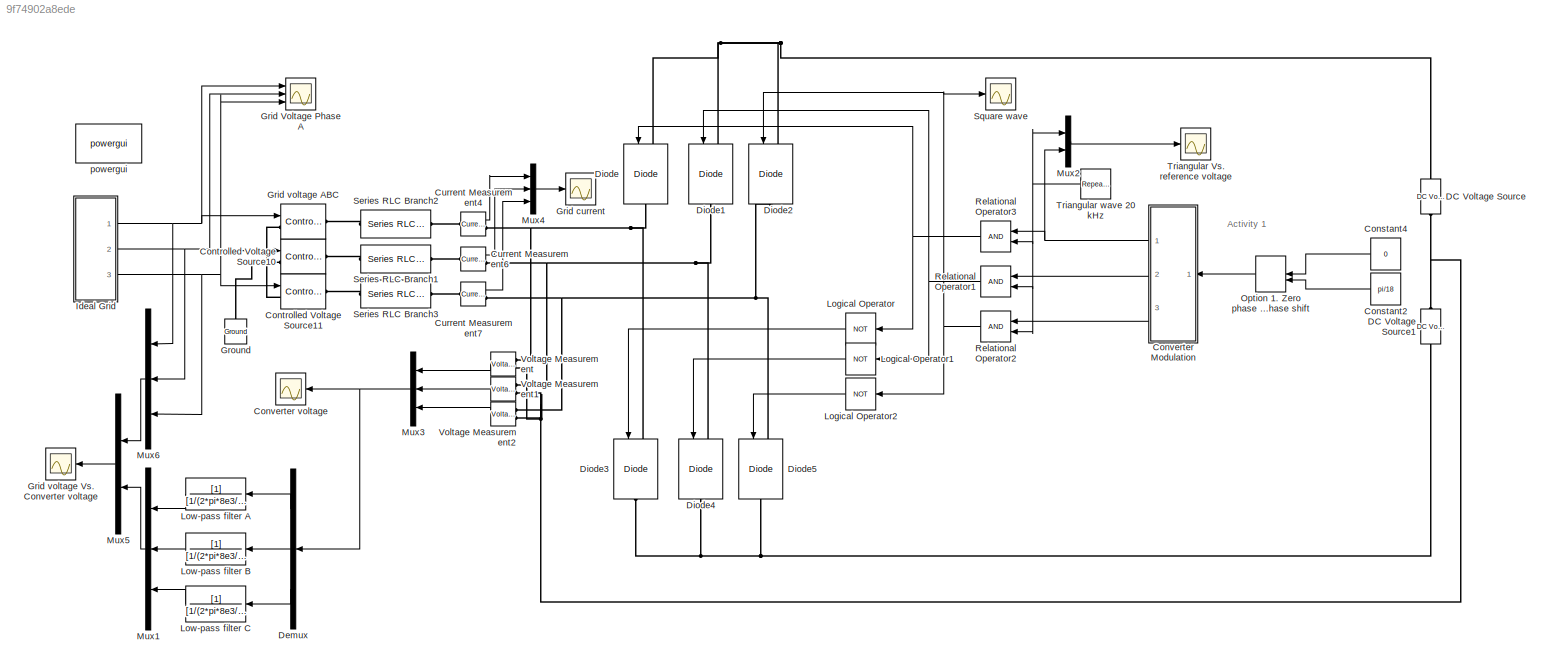
MODEL slx_9f74902a8ede
KIND model
CONFIG AbsTol = auto
CONFIG EnableMultiTasking = on
CONFIG FixedStep = auto
CONFIG InitFcn = L=5e-3\nR=0.1\ntau=10e-3\nf_grid=50\nVpeak_d1=400*sqrt(2)/sqrt(3)\n
CONFIG MaxStep = 1e-6
CONFIG MinStep = auto
CONFIG RelTol = 1e-5
CONFIG SampleTimeConstraint = Unconstrained
CONFIG SolverName = ode23s
CONFIG StartTime = 0.0
CONFIG StopTime = 20
BLOCK [Constant] Constant2
  NameLocation = top
  Value = pi/18
BLOCK [Constant] Constant4
  NameLocation = top
  Value = 0
BLOCK [Reference] Controlled Voltage Source10  REF=powerlib/Electrical
Sources/Controlled Voltage Source
  Ports = [1, 0, 0, 0, 0, 1, 1]
  SourceBlock = powerlib/Electrical\nSources/Controlled Voltage Source
  SourceProductBaseCode = PS
  SourceType = Controlled Voltage Source
BLOCK [Reference] Controlled Voltage Source11  REF=powerlib/Electrical
Sources/Controlled Voltage Source
  Ports = [1, 0, 0, 0, 0, 1, 1]
  SourceBlock = powerlib/Electrical\nSources/Controlled Voltage Source
  SourceProductBaseCode = PS
  SourceType = Controlled Voltage Source
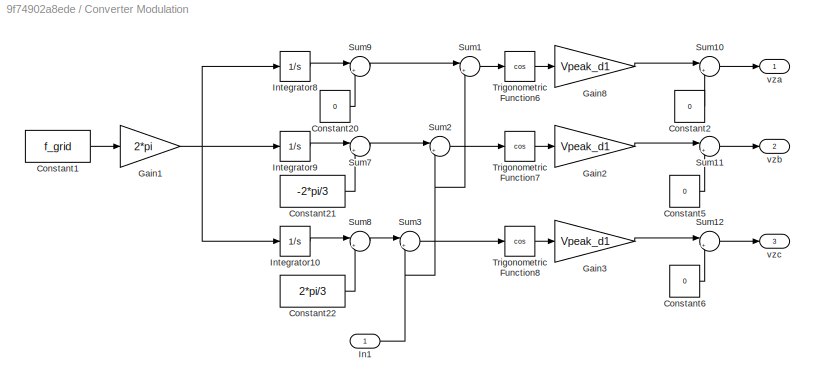
BLOCK [SubSystem] Converter Modulation
  Ports = [1, 3]
  RequestExecContextInheritance = off
BLOCK [Constant] Converter Modulation/Constant1
  Value = f_grid
BLOCK [Constant] Converter Modulation/Constant2
  Value = 0
BLOCK [Constant] Converter Modulation/Constant20
  Value = 0
BLOCK [Constant] Converter Modulation/Constant21
  Value = -2*pi/3
BLOCK [Constant] Converter Modulation/Constant22
  Value = 2*pi/3
BLOCK [Constant] Converter Modulation/Constant5
  Value = 0
BLOCK [Constant] Converter Modulation/Constant6
  Value = 0
BLOCK [Gain] Converter Modulation/Gain1
  Gain = 2*pi
BLOCK [Gain] Converter Modulation/Gain2
  Gain = Vpeak_d1
BLOCK [Gain] Converter Modulation/Gain3
  Gain = Vpeak_d1
BLOCK [Gain] Converter Modulation/Gain8
  Gain = Vpeak_d1
BLOCK [Inport] Converter Modulation/In1
BLOCK [Integrator] Converter Modulation/Integrator10
  Ports = [1, 1]
BLOCK [Integrator] Converter Modulation/Integrator8
  Ports = [1, 1]
BLOCK [Integrator] Converter Modulation/Integrator9
  Ports = [1, 1]
BLOCK [Sum] Converter Modulation/Sum1
  Inputs = |++
  Ports = [2, 1]
BLOCK [Sum] Converter Modulation/Sum10
  Inputs = |++
  Ports = [2, 1]
BLOCK [Sum] Converter Modulation/Sum11
  Inputs = |++
  Ports = [2, 1]
BLOCK [Sum] Converter Modulation/Sum12
  Inputs = |++
  Ports = [2, 1]
BLOCK [Sum] Converter Modulation/Sum2
  Inputs = |++
  Ports = [2, 1]
BLOCK [Sum] Converter Modulation/Sum3
  Inputs = |++
  Ports = [2, 1]
BLOCK [Sum] Converter Modulation/Sum7
  Inputs = |++
  Ports = [2, 1]
BLOCK [Sum] Converter Modulation/Sum8
  Inputs = |++
  Ports = [2, 1]
BLOCK [Sum] Converter Modulation/Sum9
  Inputs = |++
  Ports = [2, 1]
BLOCK [Trigonometry] Converter Modulation/Trigonometric Function6
  Operator = cos
  Ports = [1, 1]
BLOCK [Trigonometry] Converter Modulation/Trigonometric Function7
  Operator = cos
  Ports = [1, 1]
BLOCK [Trigonometry] Converter Modulation/Trigonometric Function8
  Operator = cos
  Ports = [1, 1]
BLOCK [Outport] Converter Modulation/vza
BLOCK [Outport] Converter Modulation/vzb
  Port = 2
BLOCK [Outport] Converter Modulation/vzc
  Port = 3
BLOCK [Scope] Converter voltage
  Floating = off
  NameLocation = top
  NumInputPorts = 1
  Ports = [1]
  ScopeSpecificationString = C++SS(StrPVP('Location','[5, 49, 1593, 818]'),StrPVP('Open','off'),StrPVP('ZoomMode','xonly'),MxPVP('AxesTitles',54,'struct(''axes1'',''%<SignalLabel>'')'),MxPVP('ScopeGraphics',57,'struct(''FigureColor'',''[0.501960784313725 0.501960784313725 0.501960784313725]'',''AxesColor'',''[0 0 0]'',''AxesTickColor'',''[1 1 1]'',''LineColors'',''[1 1 0;1 0 1;0 1 1;1 0 0;0 1 0;0 0 1]'',''LineStyles'',''-|-|-...<+422ch>
BLOCK [Reference] Current Measurement4  REF=powerlib/Measurements/Current Measurement
  Ports = [0, 1, 0, 0, 0, 1, 1]
  SourceBlock = powerlib/Measurements/Current Measurement
  SourceProductBaseCode = PS
  SourceType = Current Measurement
  UserDataPersistent = on
BLOCK [Reference] Current Measurement6  REF=powerlib/Measurements/Current Measurement
  Ports = [0, 1, 0, 0, 0, 1, 1]
  SourceBlock = powerlib/Measurements/Current Measurement
  SourceProductBaseCode = PS
  SourceType = Current Measurement
  UserDataPersistent = on
BLOCK [Reference] Current Measurement7  REF=powerlib/Measurements/Current Measurement
  Ports = [0, 1, 0, 0, 0, 1, 1]
  SourceBlock = powerlib/Measurements/Current Measurement
  SourceProductBaseCode = PS
  SourceType = Current Measurement
  UserDataPersistent = on
BLOCK [Reference] DC Voltage Source  REF=powerlib/Electrical
Sources/DC Voltage Source
  NameLocation = right
  Ports = [0, 0, 0, 0, 0, 1, 1]
  SourceBlock = powerlib/Electrical\nSources/DC Voltage Source
  SourceProductBaseCode = PS
  SourceType = DC Voltage Source
BLOCK [Reference] DC Voltage Source1  REF=powerlib/Electrical
Sources/DC Voltage Source
  NameLocation = right
  Ports = [0, 0, 0, 0, 0, 1, 1]
  SourceBlock = powerlib/Electrical\nSources/DC Voltage Source
  SourceProductBaseCode = PS
  SourceType = DC Voltage Source
BLOCK [Demux] Demux
  NameLocation = top
  Outputs = 3
  Ports = [1, 3]
BLOCK [Reference] Diode  REF=powerlib/Power
Electronics/IGBT//Diode
  NameLocation = left
  Ports = [1, 0, 0, 0, 0, 1, 1]
  SourceBlock = powerlib/Power\nElectronics/IGBT//Diode
  SourceProductBaseCode = PS
  SourceType = IGBT/Diode
BLOCK [Reference] Diode1  REF=powerlib/Power
Electronics/IGBT//Diode
  NameLocation = left
  Ports = [1, 0, 0, 0, 0, 1, 1]
  SourceBlock = powerlib/Power\nElectronics/IGBT//Diode
  SourceProductBaseCode = PS
  SourceType = IGBT/Diode
BLOCK [Reference] Diode2  REF=powerlib/Power
Electronics/IGBT//Diode
  NameLocation = left
  Ports = [1, 0, 0, 0, 0, 1, 1]
  SourceBlock = powerlib/Power\nElectronics/IGBT//Diode
  SourceProductBaseCode = PS
  SourceType = IGBT/Diode
BLOCK [Reference] Diode3  REF=powerlib/Power
Electronics/IGBT//Diode
  NameLocation = left
  Ports = [1, 0, 0, 0, 0, 1, 1]
  SourceBlock = powerlib/Power\nElectronics/IGBT//Diode
  SourceProductBaseCode = PS
  SourceType = IGBT/Diode
BLOCK [Reference] Diode4  REF=powerlib/Power
Electronics/IGBT//Diode
  NameLocation = left
  Ports = [1, 0, 0, 0, 0, 1, 1]
  SourceBlock = powerlib/Power\nElectronics/IGBT//Diode
  SourceProductBaseCode = PS
  SourceType = IGBT/Diode
BLOCK [Reference] Diode5  REF=powerlib/Power
Electronics/IGBT//Diode
  NameLocation = left
  Ports = [1, 0, 0, 0, 0, 1, 1]
  SourceBlock = powerlib/Power\nElectronics/IGBT//Diode
  SourceProductBaseCode = PS
  SourceType = IGBT/Diode
BLOCK [Scope] Grid Voltage Phase A
  Floating = off
  NumInputPorts = 3
  Ports = [3]
  ScopeSpecificationString = Simulink.scopes.TimeScopeBlockCfg('CurrentConfiguration', extmgr.ConfigurationSet(extmgr.Configuration('Core','General UI',true),extmgr.Configuration('Core','Source UI',true),extmgr.Configuration('Sources','WiredSimulink',true,'DataLoggingVariableName','ScopeData5','DataLoggingSaveFormat','StructureWithTime','DataLoggingDecimation','1','DataLoggingDecimateData',true),extmgr.Configuration('Visuals'...<+1844ch>
BLOCK [Scope] Grid current
  Floating = off
  NumInputPorts = 1
  Ports = [1]
  ScopeSpecificationString = Simulink.scopes.TimeScopeBlockCfg('CurrentConfiguration', extmgr.ConfigurationSet(extmgr.Configuration('Core','General UI',true),extmgr.Configuration('Core','Source UI',true),extmgr.Configuration('Sources','WiredSimulink',true,'DataLoggingVariableName','ScopeData4','DataLoggingSaveFormat','StructureWithTime','DataLoggingDecimation','1','DataLoggingDecimateData',true),extmgr.Configuration('Visuals'...<+1830ch>
BLOCK [Reference] Grid voltage ABC  REF=powerlib/Electrical
Sources/Controlled Voltage Source
  NameLocation = top
  Ports = [1, 0, 0, 0, 0, 1, 1]
  SourceBlock = powerlib/Electrical\nSources/Controlled Voltage Source
  SourceProductBaseCode = PS
  SourceType = Controlled Voltage Source
BLOCK [Scope] Grid voltage Vs. Converter voltage
  Floating = off
  NameLocation = top
  NumInputPorts = 1
  Ports = [1]
  ScopeSpecificationString = Simulink.scopes.TimeScopeBlockCfg('CurrentConfiguration', extmgr.ConfigurationSet(extmgr.Configuration('Core','General UI',true),extmgr.Configuration('Core','Source UI',true),extmgr.Configuration('Sources','WiredSimulink',true,'DataLoggingVariableName','ScopeData3','DataLoggingSaveFormat','StructureWithTime','DataLoggingDecimation','1','DataLoggingDecimateData',true),extmgr.Configuration('Visuals'...<+1904ch>
BLOCK [Reference] Ground  REF=powerlib/Elements/Ground
  NameLocation = right
  Ports = [0, 0, 0, 0, 0, 1]
  SourceBlock = powerlib/Elements/Ground
  SourceProductBaseCode = PS
  SourceType = Ground
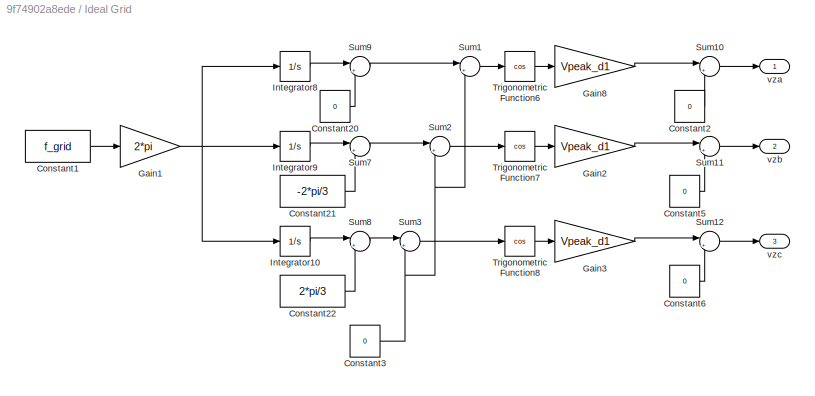
BLOCK [SubSystem] Ideal Grid
  Ports = [0, 3]
  RequestExecContextInheritance = off
BLOCK [Constant] Ideal Grid/Constant1
  Value = f_grid
BLOCK [Constant] Ideal Grid/Constant2
  Value = 0
BLOCK [Constant] Ideal Grid/Constant20
  Value = 0
BLOCK [Constant] Ideal Grid/Constant21
  Value = -2*pi/3
BLOCK [Constant] Ideal Grid/Constant22
  Value = 2*pi/3
BLOCK [Constant] Ideal Grid/Constant3
  Value = 0
BLOCK [Constant] Ideal Grid/Constant5
  Value = 0
BLOCK [Constant] Ideal Grid/Constant6
  Value = 0
BLOCK [Gain] Ideal Grid/Gain1
  Gain = 2*pi
BLOCK [Gain] Ideal Grid/Gain2
  Gain = Vpeak_d1
BLOCK [Gain] Ideal Grid/Gain3
  Gain = Vpeak_d1
BLOCK [Gain] Ideal Grid/Gain8
  Gain = Vpeak_d1
BLOCK [Integrator] Ideal Grid/Integrator10
  Ports = [1, 1]
BLOCK [Integrator] Ideal Grid/Integrator8
  Ports = [1, 1]
BLOCK [Integrator] Ideal Grid/Integrator9
  Ports = [1, 1]
BLOCK [Sum] Ideal Grid/Sum1
  Inputs = |++
  Ports = [2, 1]
BLOCK [Sum] Ideal Grid/Sum10
  Inputs = |++
  Ports = [2, 1]
BLOCK [Sum] Ideal Grid/Sum11
  Inputs = |++
  Ports = [2, 1]
BLOCK [Sum] Ideal Grid/Sum12
  Inputs = |++
  Ports = [2, 1]
BLOCK [Sum] Ideal Grid/Sum2
  Inputs = |++
  Ports = [2, 1]
BLOCK [Sum] Ideal Grid/Sum3
  Inputs = |++
  Ports = [2, 1]
BLOCK [Sum] Ideal Grid/Sum7
  Inputs = |++
  Ports = [2, 1]
BLOCK [Sum] Ideal Grid/Sum8
  Inputs = |++
  Ports = [2, 1]
BLOCK [Sum] Ideal Grid/Sum9
  Inputs = |++
  Ports = [2, 1]
BLOCK [Trigonometry] Ideal Grid/Trigonometric Function6
  Operator = cos
  Ports = [1, 1]
BLOCK [Trigonometry] Ideal Grid/Trigonometric Function7
  Operator = cos
  Ports = [1, 1]
BLOCK [Trigonometry] Ideal Grid/Trigonometric Function8
  Operator = cos
  Ports = [1, 1]
BLOCK [Outport] Ideal Grid/vza
BLOCK [Outport] Ideal Grid/vzb
  Port = 2
BLOCK [Outport] Ideal Grid/vzc
  Port = 3
BLOCK [Logic] Logical Operator
  AllPortsSameDT = off
  NameLocation = top
  Operator = NOT
  Ports = [1, 1]
BLOCK [Logic] Logical Operator1
  AllPortsSameDT = off
  NameLocation = top
  Operator = NOT
  Ports = [1, 1]
BLOCK [Logic] Logical Operator2
  AllPortsSameDT = off
  NameLocation = top
  Operator = NOT
  Ports = [1, 1]
BLOCK [TransferFcn] Low-pass filter A
  Denominator = [1/(2*pi*8e3/10) 1]
  NameLocation = top
BLOCK [TransferFcn] Low-pass filter B
  Denominator = [1/(2*pi*8e3/10) 1]
  NameLocation = top
BLOCK [TransferFcn] Low-pass filter C
  Denominator = [1/(2*pi*8e3/10) 1]
  NameLocation = top
BLOCK [Mux] Mux1
  DisplayOption = bar
  Inputs = 3
  NameLocation = top
  Ports = [3, 1]
BLOCK [Mux] Mux2
  DisplayOption = bar
  Inputs = 2
  Ports = [2, 1]
BLOCK [Mux] Mux3
  DisplayOption = bar
  Inputs = 3
  NameLocation = top
  Ports = [3, 1]
BLOCK [Mux] Mux4
  DisplayOption = bar
  Inputs = 3
  Ports = [3, 1]
BLOCK [Mux] Mux5
  DisplayOption = bar
  Inputs = 2
  NameLocation = top
  Ports = [2, 1]
BLOCK [Mux] Mux6
  DisplayOption = bar
  Inputs = 3
  NameLocation = top
  Ports = [3, 1]
BLOCK [ManualSwitch] Option 1. Zero phase shift Option 2. 20 deg. phase shift 
BLOCK [RelationalOperator] Relational Operator1
  InputSameDT = off
  NameLocation = top
  Ports = [2, 1]
BLOCK [RelationalOperator] Relational Operator2
  InputSameDT = off
  NameLocation = top
  Ports = [2, 1]
BLOCK [RelationalOperator] Relational Operator3
  InputSameDT = off
  NameLocation = top
  Ports = [2, 1]
BLOCK [Reference] Series RLC Branch1  REF=powerlib/Elements/Series RLC Branch
  Ports = [0, 0, 0, 0, 0, 1, 1]
  SourceBlock = powerlib/Elements/Series RLC Branch
  SourceProductBaseCode = PS
  SourceType = Series RLC Branch
BLOCK [Reference] Series RLC Branch2  REF=powerlib/Elements/Series RLC Branch
  Ports = [0, 0, 0, 0, 0, 1, 1]
  SourceBlock = powerlib/Elements/Series RLC Branch
  SourceProductBaseCode = PS
  SourceType = Series RLC Branch
BLOCK [Reference] Series RLC Branch3  REF=powerlib/Elements/Series RLC Branch
  Ports = [0, 0, 0, 0, 0, 1, 1]
  SourceBlock = powerlib/Elements/Series RLC Branch
  SourceProductBaseCode = PS
  SourceType = Series RLC Branch
BLOCK [Scope] Square wave
  Floating = off
  NameLocation = top
  NumInputPorts = 1
  Ports = [1]
  ScopeSpecificationString = Simulink.scopes.TimeScopeBlockCfg('CurrentConfiguration', extmgr.ConfigurationSet(extmgr.Configuration('Core','General UI',true),extmgr.Configuration('Core','Source UI',true),extmgr.Configuration('Sources','WiredSimulink',true,'DataLoggingVariableName','ScopeData1','DataLoggingSaveFormat','StructureWithTime','DataLoggingDecimation','1','DataLoggingDecimateData',true),extmgr.Configuration('Visuals'...<+1793ch>
BLOCK [Scope] Triangular Vs. reference voltage
  Floating = off
  NumInputPorts = 1
  Ports = [1]
  ScopeSpecificationString = Simulink.scopes.TimeScopeBlockCfg('CurrentConfiguration', extmgr.ConfigurationSet(extmgr.Configuration('Core','General UI',true),extmgr.Configuration('Core','Source UI',true),extmgr.Configuration('Sources','WiredSimulink',true,'DataLoggingVariableName','ScopeData1','DataLoggingSaveFormat','StructureWithTime','DataLoggingDecimation','1','DataLoggingDecimateData',true),extmgr.Configuration('Visuals'...<+1849ch>
BLOCK [Reference] Triangular wave 20 kHz  REF=simulink/Sources/Repeating
Sequence
  Ports = [0, 1]
  SourceBlock = simulink/Sources/Repeating\nSequence
  SourceProductBaseCode = SL
  SourceType = Repeating table
BLOCK [Reference] Voltage Measurement  REF=powerlib/Measurements/Voltage Measurement
  NameLocation = top
  Ports = [0, 1, 0, 0, 0, 2]
  SourceBlock = powerlib/Measurements/Voltage Measurement
  SourceProductBaseCode = PS
  SourceType = Voltage Measurement
BLOCK [Reference] Voltage Measurement1  REF=powerlib/Measurements/Voltage Measurement
  NameLocation = top
  Ports = [0, 1, 0, 0, 0, 2]
  SourceBlock = powerlib/Measurements/Voltage Measurement
  SourceProductBaseCode = PS
  SourceType = Voltage Measurement
BLOCK [Reference] Voltage Measurement2  REF=powerlib/Measurements/Voltage Measurement
  NameLocation = top
  Ports = [0, 1, 0, 0, 0, 2]
  SourceBlock = powerlib/Measurements/Voltage Measurement
  SourceProductBaseCode = PS
  SourceType = Voltage Measurement
BLOCK [Reference] powergui  REF=powerlib/powergui
  Ports = []
  Priority = 1
  SourceBlock = powerlib/powergui
  SourceProductBaseCode = PS
  SourceType = PSB option menu block
ANNOTATION (root): Activity 1
LINE Constant2:1 -> Option 1. Zero phase shift Option 2. 20 deg. phase shift :2
LINE Constant4:1 -> Option 1. Zero phase shift Option 2. 20 deg. phase shift :1
LINE Converter Modulation/Constant1:1 -> Converter Modulation/Gain1:1
LINE Converter Modulation/Constant20:1 -> Converter Modulation/Sum9:2
LINE Converter Modulation/Constant21:1 -> Converter Modulation/Sum7:2
LINE Converter Modulation/Constant22:1 -> Converter Modulation/Sum8:2
LINE Converter Modulation/Constant2:1 -> Converter Modulation/Sum10:2
LINE Converter Modulation/Constant5:1 -> Converter Modulation/Sum11:2
LINE Converter Modulation/Constant6:1 -> Converter Modulation/Sum12:2
NET Converter Modulation/Gain1:1 -> Converter Modulation/Integrator10:1, Converter Modulation/Integrator8:1, Converter Modulation/Integrator9:1
LINE Converter Modulation/Gain2:1 -> Converter Modulation/Sum11:1
LINE Converter Modulation/Gain3:1 -> Converter Modulation/Sum12:1
LINE Converter Modulation/Gain8:1 -> Converter Modulation/Sum10:1
NET Converter Modulation/In1:1 -> Converter Modulation/Sum1:2, Converter Modulation/Sum2:2, Converter Modulation/Sum3:2
LINE Converter Modulation/Integrator10:1 -> Converter Modulation/Sum8:1
LINE Converter Modulation/Integrator8:1 -> Converter Modulation/Sum9:1
LINE Converter Modulation/Integrator9:1 -> Converter Modulation/Sum7:1
LINE Converter Modulation/Sum10:1 -> Converter Modulation/vza:1
LINE Converter Modulation/Sum11:1 -> Converter Modulation/vzb:1
LINE Converter Modulation/Sum12:1 -> Converter Modulation/vzc:1
LINE Converter Modulation/Sum1:1 -> Converter Modulation/Trigonometric Function6:1
LINE Converter Modulation/Sum2:1 -> Converter Modulation/Trigonometric Function7:1
LINE Converter Modulation/Sum3:1 -> Converter Modulation/Trigonometric Function8:1
LINE Converter Modulation/Sum7:1 -> Converter Modulation/Sum2:1
LINE Converter Modulation/Sum8:1 -> Converter Modulation/Sum3:1
LINE Converter Modulation/Sum9:1 -> Converter Modulation/Sum1:1
LINE Converter Modulation/Trigonometric Function6:1 -> Converter Modulation/Gain8:1
LINE Converter Modulation/Trigonometric Function7:1 -> Converter Modulation/Gain2:1
LINE Converter Modulation/Trigonometric Function8:1 -> Converter Modulation/Gain3:1
NET Converter Modulation:1 -> Mux2:2, Relational Operator3:1
LINE Converter Modulation:2 -> Relational Operator1:1
LINE Converter Modulation:3 -> Relational Operator2:1
LINE Current Measurement4:1 -> Mux4:1
LINE Current Measurement6:1 -> Mux4:2
LINE Current Measurement7:1 -> Mux4:3
LINE Demux:1 -> Low-pass filter A:1
LINE Demux:2 -> Low-pass filter B:1
LINE Demux:3 -> Low-pass filter C:1
LINE Ideal Grid/Constant1:1 -> Ideal Grid/Gain1:1
LINE Ideal Grid/Constant20:1 -> Ideal Grid/Sum9:2
LINE Ideal Grid/Constant21:1 -> Ideal Grid/Sum7:2
LINE Ideal Grid/Constant22:1 -> Ideal Grid/Sum8:2
LINE Ideal Grid/Constant2:1 -> Ideal Grid/Sum10:2
NET Ideal Grid/Constant3:1 -> Ideal Grid/Sum1:2, Ideal Grid/Sum2:2, Ideal Grid/Sum3:2
LINE Ideal Grid/Constant5:1 -> Ideal Grid/Sum11:2
LINE Ideal Grid/Constant6:1 -> Ideal Grid/Sum12:2
NET Ideal Grid/Gain1:1 -> Ideal Grid/Integrator10:1, Ideal Grid/Integrator8:1, Ideal Grid/Integrator9:1
LINE Ideal Grid/Gain2:1 -> Ideal Grid/Sum11:1
LINE Ideal Grid/Gain3:1 -> Ideal Grid/Sum12:1
LINE Ideal Grid/Gain8:1 -> Ideal Grid/Sum10:1
LINE Ideal Grid/Integrator10:1 -> Ideal Grid/Sum8:1
LINE Ideal Grid/Integrator8:1 -> Ideal Grid/Sum9:1
LINE Ideal Grid/Integrator9:1 -> Ideal Grid/Sum7:1
LINE Ideal Grid/Sum10:1 -> Ideal Grid/vza:1
LINE Ideal Grid/Sum11:1 -> Ideal Grid/vzb:1
LINE Ideal Grid/Sum12:1 -> Ideal Grid/vzc:1
LINE Ideal Grid/Sum1:1 -> Ideal Grid/Trigonometric Function6:1
LINE Ideal Grid/Sum2:1 -> Ideal Grid/Trigonometric Function7:1
LINE Ideal Grid/Sum3:1 -> Ideal Grid/Trigonometric Function8:1
LINE Ideal Grid/Sum7:1 -> Ideal Grid/Sum2:1
LINE Ideal Grid/Sum8:1 -> Ideal Grid/Sum3:1
LINE Ideal Grid/Sum9:1 -> Ideal Grid/Sum1:1
LINE Ideal Grid/Trigonometric Function6:1 -> Ideal Grid/Gain8:1
LINE Ideal Grid/Trigonometric Function7:1 -> Ideal Grid/Gain2:1
LINE Ideal Grid/Trigonometric Function8:1 -> Ideal Grid/Gain3:1
NET Ideal Grid:1 -> Grid Voltage Phase A:1, Grid voltage ABC:1, Mux6:1
NET Ideal Grid:2 -> Controlled Voltage Source10:1, Grid Voltage Phase A:2, Mux6:2
NET Ideal Grid:3 -> Controlled Voltage Source11:1, Grid Voltage Phase A:3, Mux6:3
LINE Logical Operator1:1 -> Diode4:1
LINE Logical Operator2:1 -> Diode5:1
LINE Logical Operator:1 -> Diode3:1
LINE Low-pass filter A:1 -> Mux1:1
LINE Low-pass filter B:1 -> Mux1:2
LINE Low-pass filter C:1 -> Mux1:3
LINE Mux1:1 -> Mux5:2
LINE Mux2:1 -> Triangular Vs. reference voltage:1
NET Mux3:1 -> Converter voltage:1, Demux:1
LINE Mux4:1 -> Grid current:1
LINE Mux5:1 -> Grid voltage Vs. Converter voltage:1
LINE Mux6:1 -> Mux5:1
LINE Option 1. Zero phase shift Option 2. 20 deg. phase shift :1 -> Converter Modulation:1
NET Relational Operator1:1 -> Diode1:1, Logical Operator1:1
NET Relational Operator2:1 -> Diode2:1, Logical Operator2:1, Square wave:1
NET Relational Operator3:1 -> Diode:1, Logical Operator:1
NET Triangular wave 20 kHz:1 -> Mux2:1, Relational Operator1:2, Relational Operator2:2, Relational Operator3:2
LINE Voltage Measurement1:1 -> Mux3:2
LINE Voltage Measurement2:1 -> Mux3:3
LINE Voltage Measurement:1 -> Mux3:1
PNET net1: Controlled Voltage Source10:LConn1 -- Controlled Voltage Source11:LConn1 -- Grid voltage ABC:LConn1 -- Ground:LConn1
PLINE Controlled Voltage Source10:RConn1 -- Series RLC Branch1:LConn1
PLINE Controlled Voltage Source11:RConn1 -- Series RLC Branch3:LConn1
PLINE Current Measurement4:LConn1 -- Series RLC Branch2:RConn1
PNET net2: Current Measurement4:RConn1 -- Diode3:LConn1 -- Diode:RConn1 -- Voltage Measurement:LConn1
PLINE Current Measurement6:LConn1 -- Series RLC Branch1:RConn1
PNET net3: Current Measurement6:RConn1 -- Diode1:RConn1 -- Diode4:LConn1 -- Voltage Measurement1:LConn1
PLINE Current Measurement7:LConn1 -- Series RLC Branch3:RConn1
PNET net4: Current Measurement7:RConn1 -- Diode2:RConn1 -- Diode5:LConn1 -- Voltage Measurement2:LConn1
PNET net5: DC Voltage Source1:LConn1 -- Diode3:RConn1 -- Diode4:RConn1 -- Diode5:RConn1
PNET net6: DC Voltage Source1:RConn1 -- DC Voltage Source:LConn1 -- Voltage Measurement1:LConn2 -- Voltage Measurement2:LConn2 -- Voltage Measurement:LConn2
PNET net7: DC Voltage Source:RConn1 -- Diode1:LConn1 -- Diode2:LConn1 -- Diode:LConn1
PLINE Grid voltage ABC:RConn1 -- Series RLC Branch2:LConn1
note: NET lines group one-source signal fan-out (src -> all destinations, sorted); 1:1 wires keep LINE; PNET lines group multi-terminal physical nets as a canonical sorted terminal list (undirected conserving connections); 2-terminal nets keep the pairwise PLINE form
